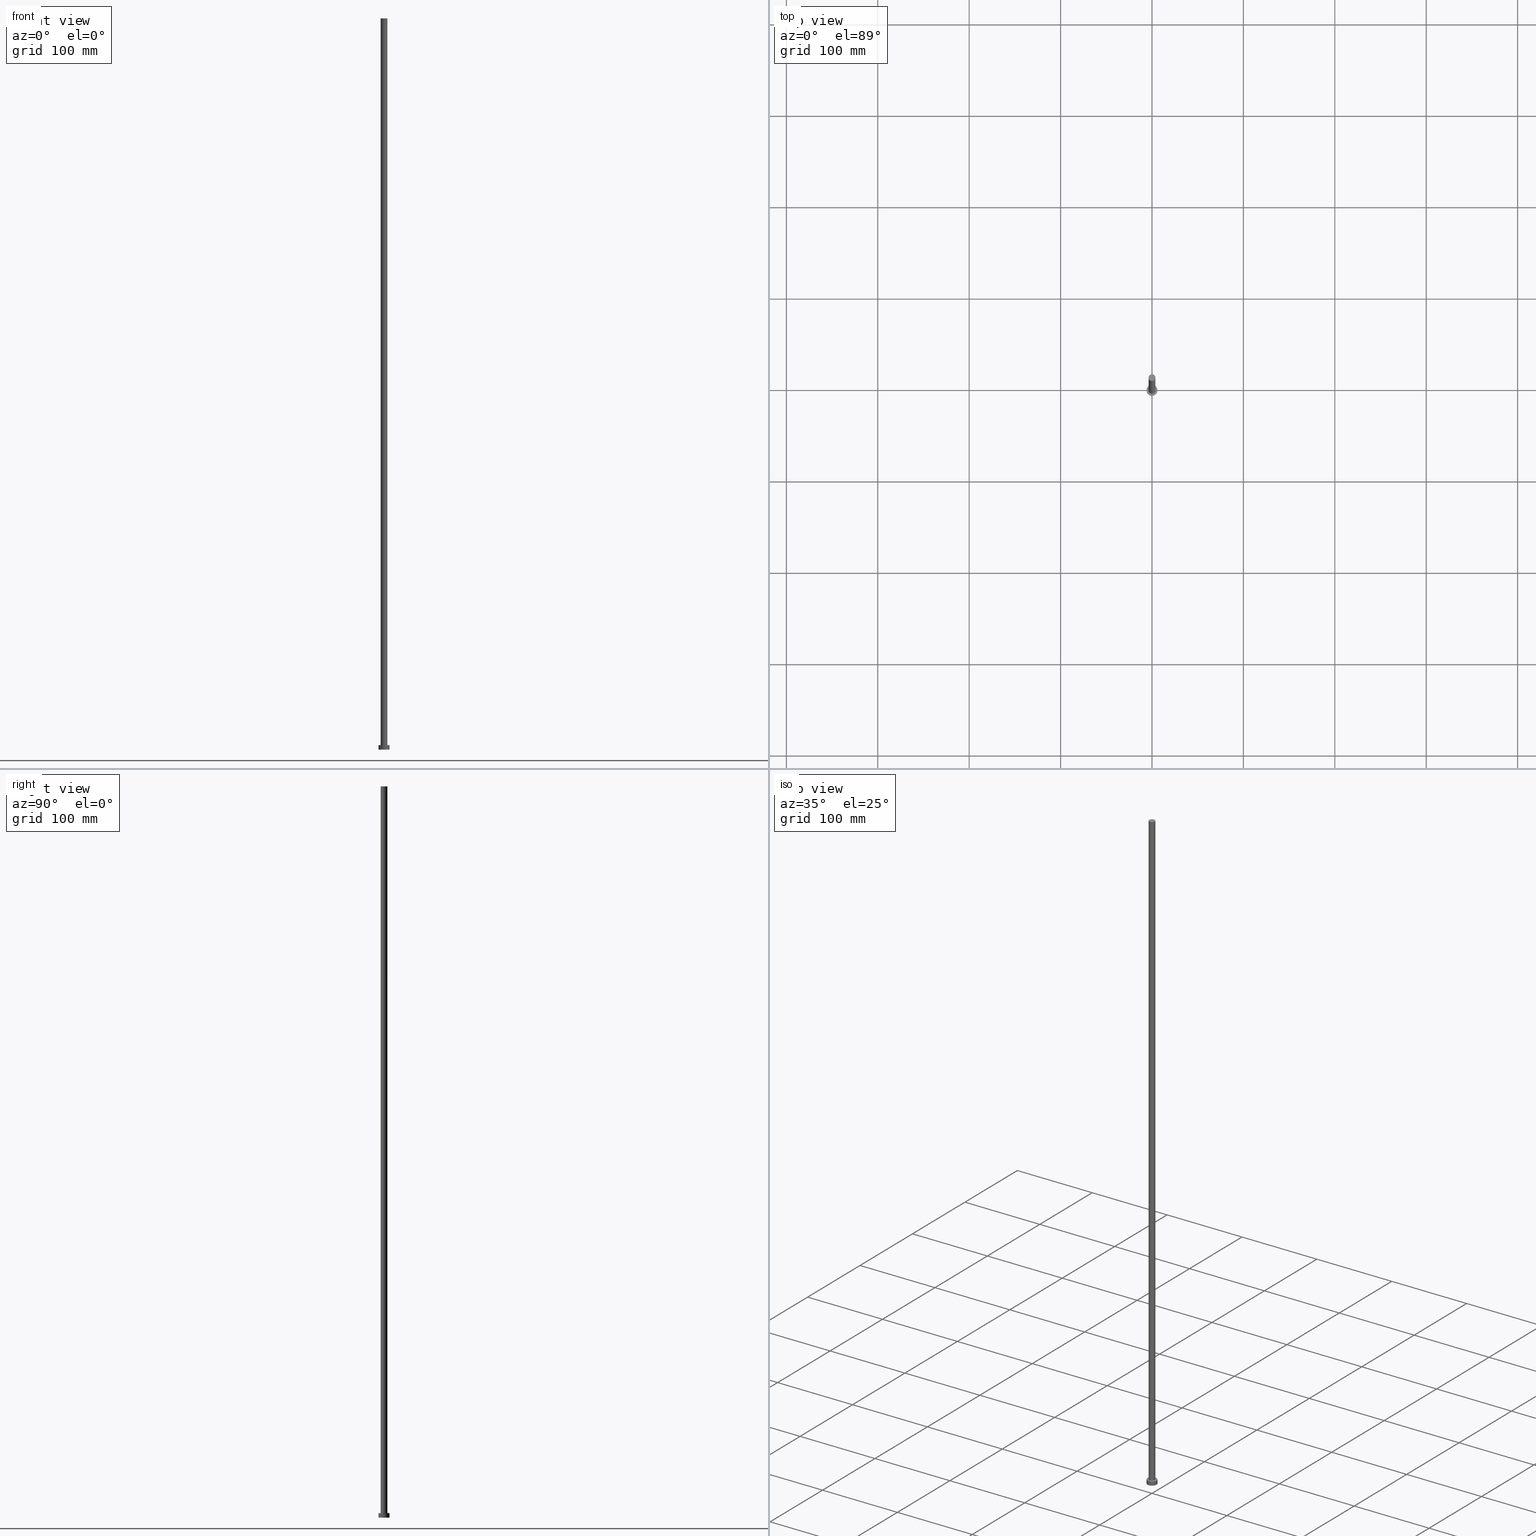
[diagram: canonical four-view strip — front | top / right | iso, engineering-drawing reading convention]
A machine part, canonical four-view strip (front | top / right | iso — engineering-drawing reading convention). The complete STEP part file that produces these views, byte-faithful:
ISO-10303-21;
HEADER;
FILE_DESCRIPTION (( 'STEP AP203' ),
    '1' );
FILE_NAME ('8a3a.STEP',
    '2023-02-12T11:55:55',
    ( '' ),
    ( '' ),
    'SwSTEP 2.0',
    'SolidWorks 2019',
    '' );
FILE_SCHEMA (( 'CONFIG_CONTROL_DESIGN' ));
ENDSEC;

DATA;
#1 = CYLINDRICAL_SURFACE ( 'NONE', #193, 6.000000000000000888 ) ;
#2 = DIRECTION ( 'NONE',  ( 1.000000000000000000, 0.000000000000000000, 0.000000000000000000 ) ) ;
#3 = DIRECTION ( 'NONE',  ( 1.000000000000000000, 0.000000000000000000, -0.000000000000000000 ) ) ;
#4 = CARTESIAN_POINT ( 'NONE',  ( -3.750000000000000000, 0.000000000000000000, 800.0000000000000000 ) ) ;
#5 = DIRECTION ( 'NONE',  ( 1.000000000000000000, 0.000000000000000000, -0.000000000000000000 ) ) ;
#6 = APPROVAL ( #160, 'NEUR�EN�' ) ;
#7 = ORIENTED_EDGE ( 'NONE', *, *, #245, .F. ) ;
#8 = AXIS2_PLACEMENT_3D ( 'NONE', #70, #236, #254 ) ;
#9 = DATE_TIME_ROLE ( 'creation_date' ) ;
#10 = AXIS2_PLACEMENT_3D ( 'NONE', #196, #17, #2 ) ;
#11 = CALENDAR_DATE ( 2023, 12, 2 ) ;
#12 = PERSON_AND_ORGANIZATION_ROLE ( 'design_supplier' ) ;
#13 = CARTESIAN_POINT ( 'NONE',  ( 6.000000000000000888, 7.347880794884120722E-16, 5.000000000000000000 ) ) ;
#14 = APPROVAL ( #189, 'NEUR�EN�' ) ;
#15 = ORIENTED_EDGE ( 'NONE', *, *, #123, .T. ) ;
#16 = EDGE_CURVE ( 'NONE', #208, #165, #21, .T. ) ;
#17 = DIRECTION ( 'NONE',  ( 0.000000000000000000, 0.000000000000000000, 1.000000000000000000 ) ) ;
#18 = CC_DESIGN_DATE_AND_TIME_ASSIGNMENT ( #171, #230, ( #91 ) ) ;
#19 = CC_DESIGN_PERSON_AND_ORGANIZATION_ASSIGNMENT ( #204, #103, ( #92 ) ) ;
#20 = DIRECTION ( 'NONE',  ( 1.000000000000000000, 0.000000000000000000, 0.000000000000000000 ) ) ;
#21 = CIRCLE ( 'NONE', #175, 3.750000000000000000 ) ;
#22 = DIRECTION ( 'NONE',  ( -1.000000000000000000, 0.000000000000000000, 0.000000000000000000 ) ) ;
#23 = PLANE ( 'NONE',  #24 ) ;
#24 = AXIS2_PLACEMENT_3D ( 'NONE', #179, #77, #3 ) ;
#25 = EDGE_CURVE ( 'NONE', #139, #192, #102, .T. ) ;
#26 = DIRECTION ( 'NONE',  ( 1.000000000000000000, 0.000000000000000000, 0.000000000000000000 ) ) ;
#27 = DIRECTION ( 'NONE',  ( 0.000000000000000000, 0.000000000000000000, 1.000000000000000000 ) ) ;
#28 = CARTESIAN_POINT ( 'NONE',  ( -6.000000000000000888, 0.000000000000000000, 5.000000000000000000 ) ) ;
#29 = ORIENTED_EDGE ( 'NONE', *, *, #123, .F. ) ;
#30 = CALENDAR_DATE ( 2023, 12, 2 ) ;
#31 = EDGE_LOOP ( 'NONE', ( #190, #220, #84, #112 ) ) ;
#32 = AXIS2_PLACEMENT_3D ( 'NONE', #216, #235, #37 ) ;
#33 = DATE_AND_TIME ( #30, #46 ) ;
#34 = ADVANCED_FACE ( 'NONE', ( #176 ), #200, .T. ) ;
#35 = LOCAL_TIME ( 12, 55, 55.00000000000000000, #88 ) ;
#36 = PRODUCT_DEFINITION_SHAPE ( 'NONE', 'NONE',  #98 ) ;
#37 = DIRECTION ( 'NONE',  ( 1.000000000000000000, 0.000000000000000000, 0.000000000000000000 ) ) ;
#38 = ORIENTED_EDGE ( 'NONE', *, *, #245, .T. ) ;
#39 = CARTESIAN_POINT ( 'NONE',  ( 3.750000000000000000, 4.592425496802573972E-16, 800.0000000000000000 ) ) ;
#40 = ORIENTED_EDGE ( 'NONE', *, *, #16, .T. ) ;
#41 = CARTESIAN_POINT ( 'NONE',  ( 6.000000000000000888, 7.347880794884120722E-16, 0.000000000000000000 ) ) ;
#42 = VECTOR ( 'NONE', #54, 1000.000000000000000 ) ;
#43 = FACE_OUTER_BOUND ( 'NONE', #90, .T. ) ;
#44 = DIRECTION ( 'NONE',  ( -0.000000000000000000, -0.000000000000000000, -1.000000000000000000 ) ) ;
#45 = DATE_AND_TIME ( #227, #185 ) ;
#46 = LOCAL_TIME ( 12, 55, 55.00000000000000000, #133 ) ;
#47 = APPROVAL_DATE_TIME ( #45, #6 ) ;
#48 = ORIENTED_EDGE ( 'NONE', *, *, #203, .F. ) ;
#49 = CARTESIAN_POINT ( 'NONE',  ( 0.000000000000000000, 0.000000000000000000, 800.0000000000000000 ) ) ;
#50 = ORIENTED_EDGE ( 'NONE', *, *, #147, .F. ) ;
#51 = DIRECTION ( 'NONE',  ( 0.000000000000000000, 0.000000000000000000, 1.000000000000000000 ) ) ;
#52 = DIRECTION ( 'NONE',  ( 1.000000000000000000, 0.000000000000000000, 0.000000000000000000 ) ) ;
#53 = CC_DESIGN_DATE_AND_TIME_ASSIGNMENT ( #33, #9, ( #98 ) ) ;
#54 = DIRECTION ( 'NONE',  ( -0.000000000000000000, -0.000000000000000000, -1.000000000000000000 ) ) ;
#55 =( NAMED_UNIT ( * ) PLANE_ANGLE_UNIT ( ) SI_UNIT ( $, .RADIAN. ) );
#56 = DIRECTION ( 'NONE',  ( -0.000000000000000000, -0.000000000000000000, -1.000000000000000000 ) ) ;
#57 = APPROVAL_ROLE ( '' ) ;
#58 = CC_DESIGN_PERSON_AND_ORGANIZATION_ASSIGNMENT ( #169, #153, ( #91 ) ) ;
#59 = CARTESIAN_POINT ( 'NONE',  ( 0.000000000000000000, 0.000000000000000000, 0.000000000000000000 ) ) ;
#60 = APPROVAL ( #130, 'NEUR�EN�' ) ;
#61 = ORIENTED_EDGE ( 'NONE', *, *, #75, .F. ) ;
#62 = CALENDAR_DATE ( 2023, 12, 2 ) ;
#63 = DATE_AND_TIME ( #247, #178 ) ;
#64 = PERSON_AND_ORGANIZATION ( #212, #162 ) ;
#65 = ORIENTED_EDGE ( 'NONE', *, *, #69, .T. ) ;
#66 = SECURITY_CLASSIFICATION_LEVEL ( 'unclassified' ) ;
#67 = CIRCLE ( 'NONE', #8, 6.000000000000000888 ) ;
#68 = DIRECTION ( 'NONE',  ( -0.000000000000000000, -0.000000000000000000, -1.000000000000000000 ) ) ;
#69 = EDGE_CURVE ( 'NONE', #244, #214, #67, .T. ) ;
#70 = CARTESIAN_POINT ( 'NONE',  ( 0.000000000000000000, 0.000000000000000000, 0.000000000000000000 ) ) ;
#71 = ORIENTED_EDGE ( 'NONE', *, *, #138, .F. ) ;
#72 = CARTESIAN_POINT ( 'NONE',  ( -3.750000000000000000, 0.000000000000000000, 800.0000000000000000 ) ) ;
#73 = AXIS2_PLACEMENT_3D ( 'NONE', #125, #44, #201 ) ;
#74 = DIRECTION ( 'NONE',  ( -0.000000000000000000, -0.000000000000000000, -1.000000000000000000 ) ) ;
#75 = EDGE_CURVE ( 'NONE', #165, #95, #177, .T. ) ;
#76 = CIRCLE ( 'NONE', #115, 6.000000000000000888 ) ;
#77 = DIRECTION ( 'NONE',  ( 0.000000000000000000, 0.000000000000000000, 1.000000000000000000 ) ) ;
#78 = CARTESIAN_POINT ( 'NONE',  ( 0.000000000000000000, 0.000000000000000000, 5.000000000000000000 ) ) ;
#79 = APPLICATION_PROTOCOL_DEFINITION ( 'international standard', 'config_control_design', 1994, #121 ) ;
#80 = AXIS2_PLACEMENT_3D ( 'NONE', #49, #74, #140 ) ;
#81 = DIRECTION ( 'NONE',  ( 1.000000000000000000, 0.000000000000000000, 0.000000000000000000 ) ) ;
#82 = CC_DESIGN_APPROVAL ( #6, ( #98 ) ) ;
#83 = COORDINATED_UNIVERSAL_TIME_OFFSET ( 1, 0, .AHEAD. ) ;
#84 = ORIENTED_EDGE ( 'NONE', *, *, #114, .T. ) ;
#85 = EDGE_LOOP ( 'NONE', ( #48, #194, #253, #65 ) ) ;
#86 = AXIS2_PLACEMENT_3D ( 'NONE', #100, #184, #81 ) ;
#87 = PERSON_AND_ORGANIZATION ( #212, #162 ) ;
#88 = COORDINATED_UNIVERSAL_TIME_OFFSET ( 1, 0, .AHEAD. ) ;
#89 = CARTESIAN_POINT ( 'NONE',  ( 0.000000000000000000, 0.000000000000000000, 5.000000000000000000 ) ) ;
#90 = EDGE_LOOP ( 'NONE', ( #188, #217 ) ) ;
#91 = SECURITY_CLASSIFICATION ( '', '', #66 ) ;
#92 = PRODUCT ( '8a3a', '8a3a', '', ( #143 ) ) ;
#93 = DIRECTION ( 'NONE',  ( -0.000000000000000000, -0.000000000000000000, -1.000000000000000000 ) ) ;
#94 = ADVANCED_BREP_SHAPE_REPRESENTATION ( '8a3a', ( #228, #149 ), #105 ) ;
#95 = VERTEX_POINT ( 'NONE', #156 ) ;
#96 = ADVANCED_FACE ( 'NONE', ( #250 ), #1, .T. ) ;
#97 = ORIENTED_EDGE ( 'NONE', *, *, #145, .T. ) ;
#98 = PRODUCT_DEFINITION ( 'NEZN�M�', '', #183, #134 ) ;
#99 = AXIS2_PLACEMENT_3D ( 'NONE', #241, #120, #205 ) ;
#100 = CARTESIAN_POINT ( 'NONE',  ( 0.000000000000000000, 0.000000000000000000, 5.000000000000000000 ) ) ;
#101 = PLANE ( 'NONE',  #136 ) ;
#102 = CIRCLE ( 'NONE', #128, 6.000000000000000888 ) ;
#103 = PERSON_AND_ORGANIZATION_ROLE ( 'design_owner' ) ;
#104 = CARTESIAN_POINT ( 'NONE',  ( 3.750000000000000000, 4.592425496802573972E-16, 800.0000000000000000 ) ) ;
#105 =( GEOMETRIC_REPRESENTATION_CONTEXT ( 3 ) GLOBAL_UNCERTAINTY_ASSIGNED_CONTEXT ( ( #197 ) ) GLOBAL_UNIT_ASSIGNED_CONTEXT ( ( #158, #55, #243 ) ) REPRESENTATION_CONTEXT ( 'NONE', 'WORKASPACE' ) );
#106 = PERSON_AND_ORGANIZATION ( #212, #162 ) ;
#107 = VECTOR ( 'NONE', #56, 1000.000000000000000 ) ;
#108 = ORIENTED_EDGE ( 'NONE', *, *, #75, .T. ) ;
#109 = CC_DESIGN_PERSON_AND_ORGANIZATION_ASSIGNMENT ( #87, #12, ( #183 ) ) ;
#110 = ADVANCED_FACE ( 'NONE', ( #154 ), #238, .T. ) ;
#111 = CIRCLE ( 'NONE', #86, 3.750000000000000000 ) ;
#112 = ORIENTED_EDGE ( 'NONE', *, *, #191, .F. ) ;
#113 = CARTESIAN_POINT ( 'NONE',  ( 0.000000000000000000, 0.000000000000000000, 5.000000000000000000 ) ) ;
#114 = EDGE_CURVE ( 'NONE', #214, #244, #76, .T. ) ;
#115 = AXIS2_PLACEMENT_3D ( 'NONE', #174, #157, #52 ) ;
#116 = DIRECTION ( 'NONE',  ( -0.000000000000000000, -0.000000000000000000, -1.000000000000000000 ) ) ;
#117 = ORIENTED_EDGE ( 'NONE', *, *, #138, .T. ) ;
#118 = FACE_OUTER_BOUND ( 'NONE', #163, .T. ) ;
#119 = PRODUCT_RELATED_PRODUCT_CATEGORY ( 'detail', '', ( #92 ) ) ;
#120 = DIRECTION ( 'NONE',  ( 0.000000000000000000, 0.000000000000000000, 1.000000000000000000 ) ) ;
#121 = APPLICATION_CONTEXT ( 'configuration controlled 3d designs of mechanical parts and assemblies' ) ;
#122 = CARTESIAN_POINT ( 'NONE',  ( 0.000000000000000000, 0.000000000000000000, 0.000000000000000000 ) ) ;
#123 = EDGE_CURVE ( 'NONE', #252, #95, #213, .T. ) ;
#124 = APPLICATION_CONTEXT ( 'configuration controlled 3d designs of mechanical parts and assemblies' ) ;
#125 = CARTESIAN_POINT ( 'NONE',  ( 0.000000000000000000, 0.000000000000000000, 800.0000000000000000 ) ) ;
#126 = CIRCLE ( 'NONE', #10, 6.000000000000000888 ) ;
#127 = CARTESIAN_POINT ( 'NONE',  ( -6.000000000000000888, 0.000000000000000000, 0.000000000000000000 ) ) ;
#128 = AXIS2_PLACEMENT_3D ( 'NONE', #89, #155, #20 ) ;
#129 = ORIENTED_EDGE ( 'NONE', *, *, #25, .T. ) ;
#130 = APPROVAL_STATUS ( 'not_yet_approved' ) ;
#131 = APPROVAL_PERSON_ORGANIZATION ( #132, #60, #210 ) ;
#132 = PERSON_AND_ORGANIZATION ( #212, #162 ) ;
#133 = COORDINATED_UNIVERSAL_TIME_OFFSET ( 1, 0, .AHEAD. ) ;
#134 = DESIGN_CONTEXT ( 'detailed design', #121, 'design' ) ;
#135 = APPROVAL_DATE_TIME ( #187, #14 ) ;
#136 = AXIS2_PLACEMENT_3D ( 'NONE', #78, #182, #180 ) ;
#137 = DIRECTION ( 'NONE',  ( -1.000000000000000000, 0.000000000000000000, 0.000000000000000000 ) ) ;
#138 = EDGE_CURVE ( 'NONE', #208, #252, #219, .T. ) ;
#139 = VERTEX_POINT ( 'NONE', #13 ) ;
#140 = DIRECTION ( 'NONE',  ( -1.000000000000000000, 0.000000000000000000, 0.000000000000000000 ) ) ;
#141 = LINE ( 'NONE', #202, #42 ) ;
#142 = FACE_BOUND ( 'NONE', #152, .T. ) ;
#143 = MECHANICAL_CONTEXT ( 'NONE', #124, 'mechanical' ) ;
#144 = FACE_OUTER_BOUND ( 'NONE', #168, .T. ) ;
#145 = EDGE_CURVE ( 'NONE', #192, #139, #126, .T. ) ;
#146 = COORDINATED_UNIVERSAL_TIME_OFFSET ( 1, 0, .AHEAD. ) ;
#147 = EDGE_CURVE ( 'NONE', #165, #208, #186, .T. ) ;
#148 = CARTESIAN_POINT ( 'NONE',  ( 3.750000000000000000, 4.592425496802573972E-16, 5.000000000000000000 ) ) ;
#149 = AXIS2_PLACEMENT_3D ( 'NONE', #59, #161, #26 ) ;
#150 = ADVANCED_FACE ( 'NONE', ( #142, #159 ), #101, .T. ) ;
#151 = APPROVAL_ROLE ( '' ) ;
#152 = EDGE_LOOP ( 'NONE', ( #7, #29 ) ) ;
#153 = PERSON_AND_ORGANIZATION_ROLE ( 'classification_officer' ) ;
#154 = FACE_OUTER_BOUND ( 'NONE', #173, .T. ) ;
#155 = DIRECTION ( 'NONE',  ( 0.000000000000000000, 0.000000000000000000, 1.000000000000000000 ) ) ;
#156 = CARTESIAN_POINT ( 'NONE',  ( -3.750000000000000000, 0.000000000000000000, 5.000000000000000000 ) ) ;
#157 = DIRECTION ( 'NONE',  ( 0.000000000000000000, 0.000000000000000000, 1.000000000000000000 ) ) ;
#158 =( LENGTH_UNIT ( ) NAMED_UNIT ( * ) SI_UNIT ( .MILLI., .METRE. ) );
#159 = FACE_OUTER_BOUND ( 'NONE', #249, .T. ) ;
#160 = APPROVAL_STATUS ( 'not_yet_approved' ) ;
#161 = DIRECTION ( 'NONE',  ( 0.000000000000000000, 0.000000000000000000, 1.000000000000000000 ) ) ;
#162 = ORGANIZATION ( 'NEUR�EN�', 'NEUR�EN�', '' ) ;
#163 = EDGE_LOOP ( 'NONE', ( #172, #40 ) ) ;
#164 = PERSON_AND_ORGANIZATION ( #212, #162 ) ;
#165 = VERTEX_POINT ( 'NONE', #4 ) ;
#166 = COORDINATED_UNIVERSAL_TIME_OFFSET ( 1, 0, .AHEAD. ) ;
#167 = AXIS2_PLACEMENT_3D ( 'NONE', #122, #27, #5 ) ;
#168 = EDGE_LOOP ( 'NONE', ( #71, #50, #108, #38 ) ) ;
#169 = PERSON_AND_ORGANIZATION ( #212, #162 ) ;
#170 = CC_DESIGN_PERSON_AND_ORGANIZATION_ASSIGNMENT ( #64, #233, ( #98 ) ) ;
#171 = DATE_AND_TIME ( #62, #35 ) ;
#172 = ORIENTED_EDGE ( 'NONE', *, *, #147, .T. ) ;
#173 = EDGE_LOOP ( 'NONE', ( #229, #117, #15, #61 ) ) ;
#174 = CARTESIAN_POINT ( 'NONE',  ( 0.000000000000000000, 0.000000000000000000, 0.000000000000000000 ) ) ;
#175 = AXIS2_PLACEMENT_3D ( 'NONE', #198, #51, #237 ) ;
#176 = FACE_OUTER_BOUND ( 'NONE', #31, .T. ) ;
#177 = LINE ( 'NONE', #72, #199 ) ;
#178 = LOCAL_TIME ( 12, 55, 55.00000000000000000, #166 ) ;
#179 = CARTESIAN_POINT ( 'NONE',  ( 0.000000000000000000, 0.000000000000000000, 800.0000000000000000 ) ) ;
#180 = DIRECTION ( 'NONE',  ( 1.000000000000000000, 0.000000000000000000, -0.000000000000000000 ) ) ;
#181 = APPLICATION_PROTOCOL_DEFINITION ( 'international standard', 'config_control_design', 1994, #124 ) ;
#182 = DIRECTION ( 'NONE',  ( 0.000000000000000000, 0.000000000000000000, 1.000000000000000000 ) ) ;
#183 = PRODUCT_DEFINITION_FORMATION_WITH_SPECIFIED_SOURCE ( 'LIBOVOLN�', '', #92, .NOT_KNOWN. ) ;
#184 = DIRECTION ( 'NONE',  ( 0.000000000000000000, 0.000000000000000000, 1.000000000000000000 ) ) ;
#185 = LOCAL_TIME ( 12, 55, 55.00000000000000000, #146 ) ;
#186 = CIRCLE ( 'NONE', #99, 3.750000000000000000 ) ;
#187 = DATE_AND_TIME ( #11, #255 ) ;
#188 = ORIENTED_EDGE ( 'NONE', *, *, #69, .F. ) ;
#189 = APPROVAL_STATUS ( 'not_yet_approved' ) ;
#190 = ORIENTED_EDGE ( 'NONE', *, *, #25, .F. ) ;
#191 = EDGE_CURVE ( 'NONE', #192, #244, #141, .T. ) ;
#192 = VERTEX_POINT ( 'NONE', #28 ) ;
#193 = AXIS2_PLACEMENT_3D ( 'NONE', #113, #68, #137 ) ;
#194 = ORIENTED_EDGE ( 'NONE', *, *, #145, .F. ) ;
#195 = ADVANCED_FACE ( 'NONE', ( #144 ), #226, .T. ) ;
#196 = CARTESIAN_POINT ( 'NONE',  ( 0.000000000000000000, 0.000000000000000000, 5.000000000000000000 ) ) ;
#197 = UNCERTAINTY_MEASURE_WITH_UNIT (LENGTH_MEASURE( 1.000000000000000082E-05 ), #158, 'distance_accuracy_value', 'NONE');
#198 = CARTESIAN_POINT ( 'NONE',  ( 0.000000000000000000, 0.000000000000000000, 800.0000000000000000 ) ) ;
#199 = VECTOR ( 'NONE', #239, 1000.000000000000000 ) ;
#200 = CYLINDRICAL_SURFACE ( 'NONE', #246, 6.000000000000000888 ) ;
#201 = DIRECTION ( 'NONE',  ( -1.000000000000000000, 0.000000000000000000, 0.000000000000000000 ) ) ;
#202 = CARTESIAN_POINT ( 'NONE',  ( -6.000000000000000888, 0.000000000000000000, 5.000000000000000000 ) ) ;
#203 = EDGE_CURVE ( 'NONE', #139, #214, #242, .T. ) ;
#204 = PERSON_AND_ORGANIZATION ( #212, #162 ) ;
#205 = DIRECTION ( 'NONE',  ( 1.000000000000000000, 0.000000000000000000, 0.000000000000000000 ) ) ;
#206 = VECTOR ( 'NONE', #116, 1000.000000000000000 ) ;
#207 = PERSON_AND_ORGANIZATION_ROLE ( 'creator' ) ;
#208 = VERTEX_POINT ( 'NONE', #104 ) ;
#209 = ADVANCED_FACE ( 'NONE', ( #43 ), #222, .F. ) ;
#210 = APPROVAL_ROLE ( '' ) ;
#211 = SHAPE_DEFINITION_REPRESENTATION ( #36, #94 ) ;
#212 = PERSON ( 'NEUR�EN�', 'NEUR�EN�', 'NEUR�EN�', ('NEUR�EN�'), ('NEUR�EN�'), ('NEUR�EN�') ) ;
#213 = CIRCLE ( 'NONE', #32, 3.750000000000000000 ) ;
#214 = VERTEX_POINT ( 'NONE', #41 ) ;
#215 = PERSON_AND_ORGANIZATION ( #212, #162 ) ;
#216 = CARTESIAN_POINT ( 'NONE',  ( 0.000000000000000000, 0.000000000000000000, 5.000000000000000000 ) ) ;
#217 = ORIENTED_EDGE ( 'NONE', *, *, #114, .F. ) ;
#218 = CLOSED_SHELL ( 'NONE', ( #110, #34, #96, #150, #209, #195, #225 ) ) ;
#219 = LINE ( 'NONE', #39, #206 ) ;
#220 = ORIENTED_EDGE ( 'NONE', *, *, #203, .T. ) ;
#221 = CARTESIAN_POINT ( 'NONE',  ( 0.000000000000000000, 0.000000000000000000, 5.000000000000000000 ) ) ;
#222 = PLANE ( 'NONE',  #167 ) ;
#223 = CC_DESIGN_APPROVAL ( #14, ( #183 ) ) ;
#224 = CARTESIAN_POINT ( 'NONE',  ( 6.000000000000000888, 7.347880794884120722E-16, 5.000000000000000000 ) ) ;
#225 = ADVANCED_FACE ( 'NONE', ( #118 ), #23, .T. ) ;
#226 = CYLINDRICAL_SURFACE ( 'NONE', #73, 3.750000000000000000 ) ;
#227 = CALENDAR_DATE ( 2023, 12, 2 ) ;
#228 = MANIFOLD_SOLID_BREP ( 'P�idat vysunut�m3', #218 ) ;
#229 = ORIENTED_EDGE ( 'NONE', *, *, #16, .F. ) ;
#230 = DATE_TIME_ROLE ( 'classification_date' ) ;
#231 = APPROVAL_PERSON_ORGANIZATION ( #215, #14, #151 ) ;
#232 = APPROVAL_DATE_TIME ( #63, #60 ) ;
#233 = PERSON_AND_ORGANIZATION_ROLE ( 'creator' ) ;
#234 = CC_DESIGN_SECURITY_CLASSIFICATION ( #91, ( #183 ) ) ;
#235 = DIRECTION ( 'NONE',  ( 0.000000000000000000, 0.000000000000000000, 1.000000000000000000 ) ) ;
#236 = DIRECTION ( 'NONE',  ( 0.000000000000000000, 0.000000000000000000, 1.000000000000000000 ) ) ;
#237 = DIRECTION ( 'NONE',  ( 1.000000000000000000, 0.000000000000000000, 0.000000000000000000 ) ) ;
#238 = CYLINDRICAL_SURFACE ( 'NONE', #80, 3.750000000000000000 ) ;
#239 = DIRECTION ( 'NONE',  ( -0.000000000000000000, -0.000000000000000000, -1.000000000000000000 ) ) ;
#240 = CC_DESIGN_PERSON_AND_ORGANIZATION_ASSIGNMENT ( #164, #207, ( #183 ) ) ;
#241 = CARTESIAN_POINT ( 'NONE',  ( 0.000000000000000000, 0.000000000000000000, 800.0000000000000000 ) ) ;
#242 = LINE ( 'NONE', #224, #107 ) ;
#243 =( NAMED_UNIT ( * ) SI_UNIT ( $, .STERADIAN. ) SOLID_ANGLE_UNIT ( ) );
#244 = VERTEX_POINT ( 'NONE', #127 ) ;
#245 = EDGE_CURVE ( 'NONE', #95, #252, #111, .T. ) ;
#246 = AXIS2_PLACEMENT_3D ( 'NONE', #221, #93, #22 ) ;
#247 = CALENDAR_DATE ( 2023, 12, 2 ) ;
#248 = APPROVAL_PERSON_ORGANIZATION ( #106, #6, #57 ) ;
#249 = EDGE_LOOP ( 'NONE', ( #97, #129 ) ) ;
#250 = FACE_OUTER_BOUND ( 'NONE', #85, .T. ) ;
#251 = CC_DESIGN_APPROVAL ( #60, ( #91 ) ) ;
#252 = VERTEX_POINT ( 'NONE', #148 ) ;
#253 = ORIENTED_EDGE ( 'NONE', *, *, #191, .T. ) ;
#254 = DIRECTION ( 'NONE',  ( 1.000000000000000000, 0.000000000000000000, 0.000000000000000000 ) ) ;
#255 = LOCAL_TIME ( 12, 55, 55.00000000000000000, #83 ) ;
ENDSEC;
END-ISO-10303-21;
